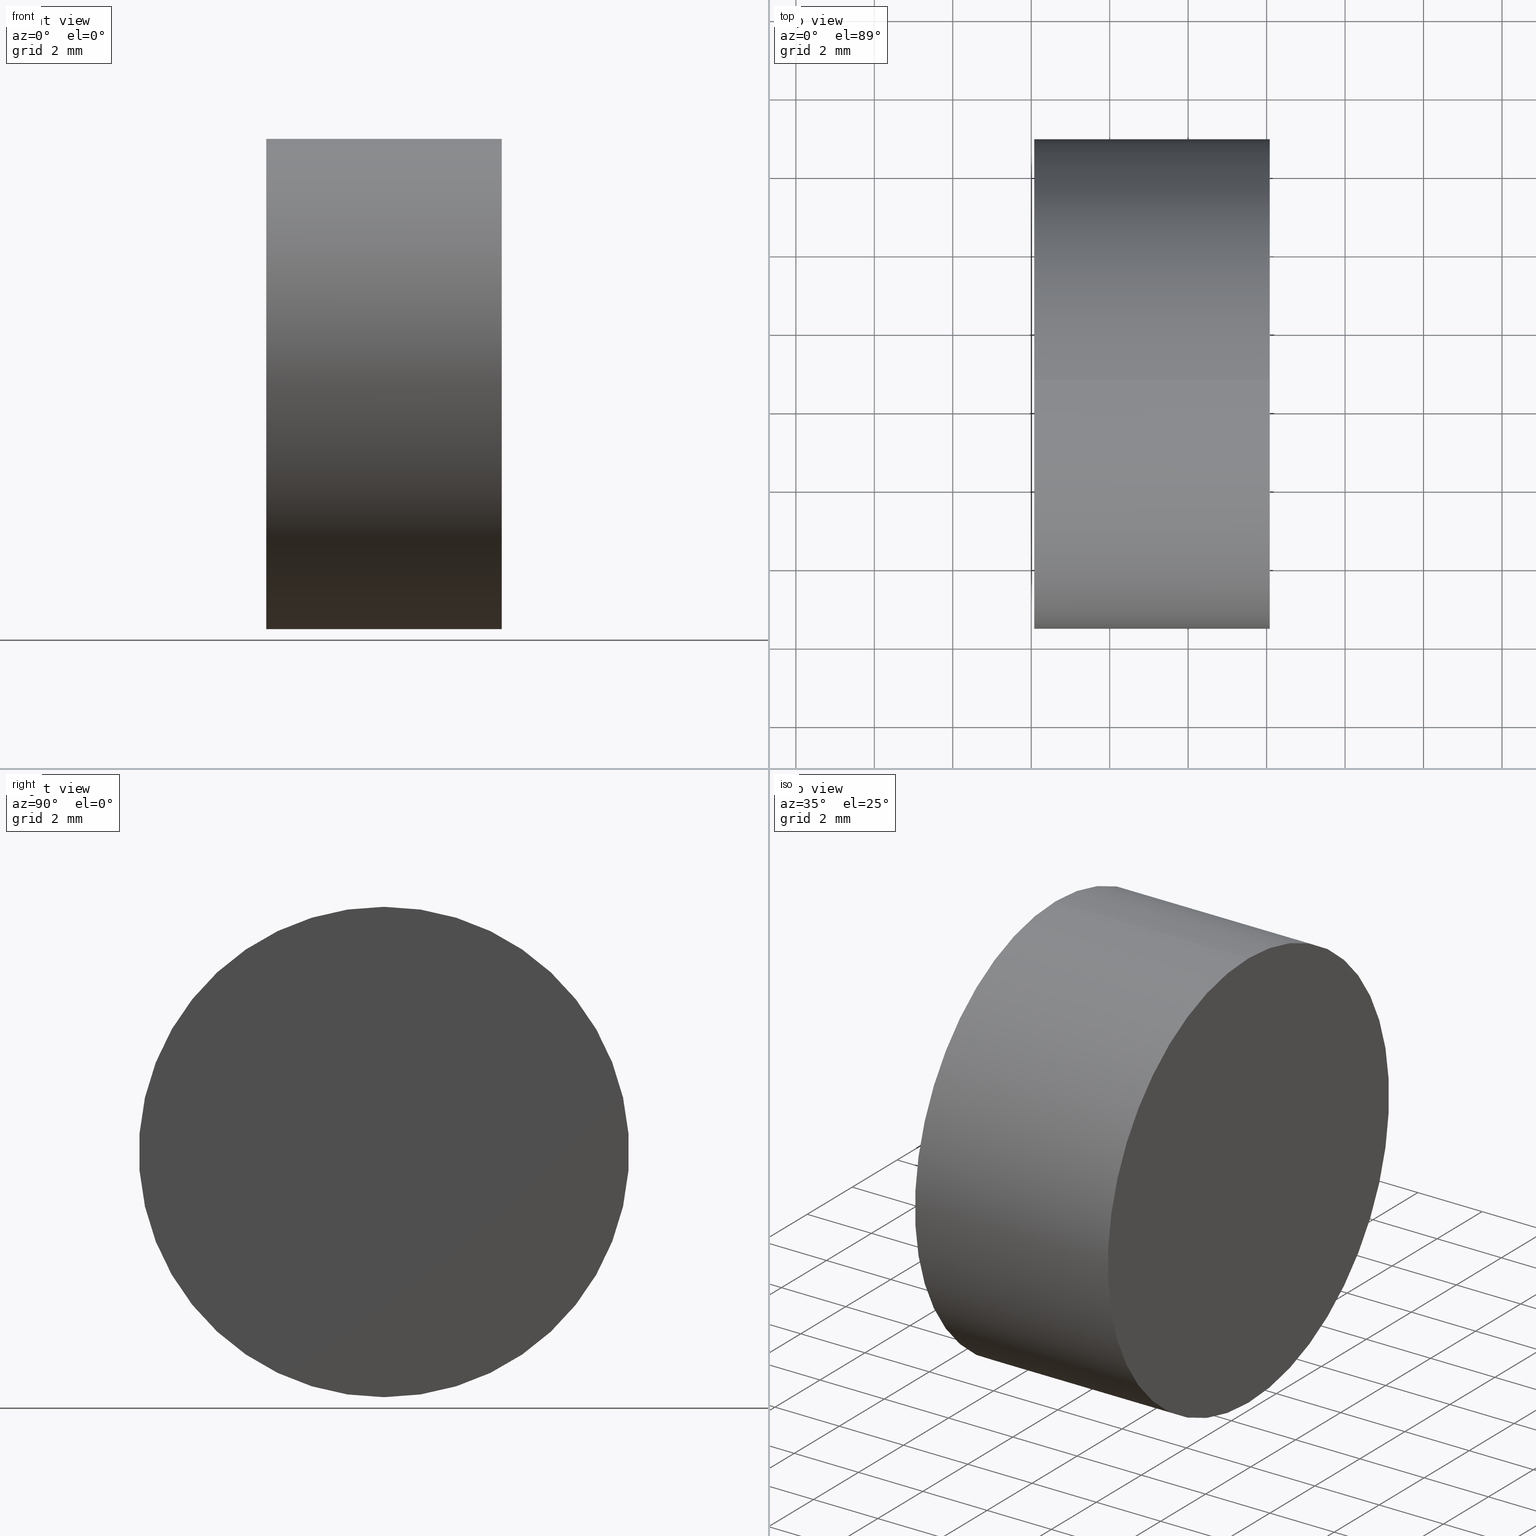
[diagram: canonical four-view strip — front | top / right | iso, engineering-drawing reading convention]
A machine part, canonical four-view strip (front | top / right | iso — engineering-drawing reading convention). The complete STEP part file that produces these views, byte-faithful:
ISO-10303-21;
HEADER;
FILE_DESCRIPTION (( 'STEP AP214' ),
    '1' );
FILE_NAME ('430000.STEP',
    '2019-08-22T02:10:31',
    ( '' ),
    ( '' ),
    'SwSTEP 2.0',
    'SolidWorks 2016',
    '' );
FILE_SCHEMA (( 'AUTOMOTIVE_DESIGN' ));
ENDSEC;

DATA;
#1 = ORIENTED_EDGE ( 'NONE', *, *, #33, .T. ) ;
#2 = ADVANCED_FACE ( 'NONE', ( #108 ), #126, .F. ) ;
#3 = ORIENTED_EDGE ( 'NONE', *, *, #11, .F. ) ;
#4 = CARTESIAN_POINT ( 'NONE',  ( 127.0004009963080200, 38.64658967450770900, -6.249999999999992000 ) ) ;
#5 = DIRECTION ( 'NONE',  ( -1.000000000000000000, 0.0000000000000000000, -0.0000000000000000000 ) ) ;
#6 = AXIS2_PLACEMENT_3D ( 'NONE', #125, #117, #66 ) ;
#7 = FILL_AREA_STYLE ('',( #67 ) ) ;
#8 = EDGE_LOOP ( 'NONE', ( #81, #43, #1, #60 ) ) ;
#9 = FILL_AREA_STYLE_COLOUR ( '', #105 ) ;
#10 = CARTESIAN_POINT ( 'NONE',  ( 130.0785702462804900, 38.64658967450770900, 0.0000000000000000000 ) ) ;
#11 = EDGE_CURVE ( 'NONE', #58, #94, #19, .T. ) ;
#12 =( NAMED_UNIT ( * ) SI_UNIT ( $, .STERADIAN. ) SOLID_ANGLE_UNIT ( ) );
#13 = CIRCLE ( 'NONE', #70, 6.249999999999992000 ) ;
#14 = PRESENTATION_LAYER_ASSIGNMENT (  '', '', ( #114 ) ) ;
#15 = UNCERTAINTY_MEASURE_WITH_UNIT (LENGTH_MEASURE( 1.000000000000000100E-005 ), #23, 'distance_accuracy_value', 'NONE');
#16 = EDGE_CURVE ( 'NONE', #131, #63, #113, .T. ) ;
#17 =( NAMED_UNIT ( * ) PLANE_ANGLE_UNIT ( ) SI_UNIT ( $, .RADIAN. ) );
#18 = CARTESIAN_POINT ( 'NONE',  ( 136.0785702462804900, 38.64658967450770900, -6.249999999999992000 ) ) ;
#19 = CIRCLE ( 'NONE', #6, 6.249999999999992000 ) ;
#20 = DIRECTION ( 'NONE',  ( -1.000000000000000000, -0.0000000000000000000, -0.0000000000000000000 ) ) ;
#21 = STYLED_ITEM ( 'NONE', ( #30 ), #47 ) ;
#22 = DIRECTION ( 'NONE',  ( 0.0000000000000000000, 0.0000000000000000000, 1.000000000000000000 ) ) ;
#23 =( LENGTH_UNIT ( ) NAMED_UNIT ( * ) SI_UNIT ( .MILLI., .METRE. ) );
#24 = DIRECTION ( 'NONE',  ( 0.0000000000000000000, 0.0000000000000000000, 1.000000000000000000 ) ) ;
#25 = APPLICATION_PROTOCOL_DEFINITION ( 'draft international standard', 'automotive_design', 1998, #112 ) ;
#26 = FACE_OUTER_BOUND ( 'NONE', #27, .T. ) ;
#27 = EDGE_LOOP ( 'NONE', ( #116, #132 ) ) ;
#28 = AXIS2_PLACEMENT_3D ( 'NONE', #97, #45, #34 ) ;
#29 = CLOSED_SHELL ( 'NONE', ( #41, #2, #115, #39 ) ) ;
#30 = PRESENTATION_STYLE_ASSIGNMENT (( #59 ) ) ;
#31 = DIRECTION ( 'NONE',  ( 0.0000000000000000000, 0.0000000000000000000, 1.000000000000000000 ) ) ;
#32 = CARTESIAN_POINT ( 'NONE',  ( 136.0785702462804900, 38.64658967450770900, 6.249999999999992000 ) ) ;
#33 = EDGE_CURVE ( 'NONE', #58, #131, #96, .T. ) ;
#34 = DIRECTION ( 'NONE',  ( 0.0000000000000000000, 0.0000000000000000000, -1.000000000000000000 ) ) ;
#35 = ORIENTED_EDGE ( 'NONE', *, *, #57, .T. ) ;
#36 = PRODUCT_CONTEXT ( 'NONE', #112, 'mechanical' ) ;
#37 = AXIS2_PLACEMENT_3D ( 'NONE', #119, #138, #103 ) ;
#38 = AXIS2_PLACEMENT_3D ( 'NONE', #87, #20, #61 ) ;
#39 = ADVANCED_FACE ( 'NONE', ( #26 ), #98, .F. ) ;
#40 = ORIENTED_EDGE ( 'NONE', *, *, #137, .F. ) ;
#41 = ADVANCED_FACE ( 'NONE', ( #82 ), #65, .T. ) ;
#42 = MECHANICAL_DESIGN_GEOMETRIC_PRESENTATION_REPRESENTATION (  '', ( #114 ), #51 ) ;
#43 = ORIENTED_EDGE ( 'NONE', *, *, #137, .T. ) ;
#44 = AXIS2_PLACEMENT_3D ( 'NONE', #10, #89, #24 ) ;
#45 = DIRECTION ( 'NONE',  ( 1.000000000000000000, 0.0000000000000000000, 0.0000000000000000000 ) ) ;
#46 =( NAMED_UNIT ( * ) SI_UNIT ( $, .STERADIAN. ) SOLID_ANGLE_UNIT ( ) );
#47 = MANIFOLD_SOLID_BREP ( '��ת1', #29 ) ;
#48 = SURFACE_STYLE_FILL_AREA ( #7 ) ;
#49 = SURFACE_SIDE_STYLE ('',( #53 ) ) ;
#50 = DIRECTION ( 'NONE',  ( -1.000000000000000000, -0.0000000000000000000, -0.0000000000000000000 ) ) ;
#51 =( GEOMETRIC_REPRESENTATION_CONTEXT ( 3 ) GLOBAL_UNCERTAINTY_ASSIGNED_CONTEXT ( ( #56 ) ) GLOBAL_UNIT_ASSIGNED_CONTEXT ( ( #69, #102, #12 ) ) REPRESENTATION_CONTEXT ( 'NONE', 'WORKASPACE' ) );
#52 = SURFACE_STYLE_USAGE ( .BOTH. , #93 ) ;
#53 = SURFACE_STYLE_FILL_AREA ( #110 ) ;
#54 = FACE_OUTER_BOUND ( 'NONE', #8, .T. ) ;
#55 = AXIS2_PLACEMENT_3D ( 'NONE', #135, #109, #31 ) ;
#56 = UNCERTAINTY_MEASURE_WITH_UNIT (LENGTH_MEASURE( 1.000000000000000100E-005 ), #69, 'distance_accuracy_value', 'NONE');
#57 = EDGE_CURVE ( 'NONE', #94, #63, #127, .T. ) ;
#58 = VERTEX_POINT ( 'NONE', #32 ) ;
#59 = SURFACE_STYLE_USAGE ( .BOTH. , #49 ) ;
#60 = ORIENTED_EDGE ( 'NONE', *, *, #95, .F. ) ;
#61 = DIRECTION ( 'NONE',  ( 0.0000000000000000000, 0.0000000000000000000, 1.000000000000000000 ) ) ;
#62 = MECHANICAL_DESIGN_GEOMETRIC_PRESENTATION_REPRESENTATION (  '', ( #21 ), #78 ) ;
#63 = VERTEX_POINT ( 'NONE', #133 ) ;
#64 =( NAMED_UNIT ( * ) PLANE_ANGLE_UNIT ( ) SI_UNIT ( $, .RADIAN. ) );
#65 = CYLINDRICAL_SURFACE ( 'NONE', #55, 6.249999999999992000 ) ;
#66 = DIRECTION ( 'NONE',  ( 0.0000000000000000000, 0.0000000000000000000, 1.000000000000000000 ) ) ;
#67 = FILL_AREA_STYLE_COLOUR ( '', #100 ) ;
#68 = PRODUCT_DEFINITION_SHAPE ( 'NONE', 'NONE',  #71 ) ;
#69 =( LENGTH_UNIT ( ) NAMED_UNIT ( * ) SI_UNIT ( .MILLI., .METRE. ) );
#70 = AXIS2_PLACEMENT_3D ( 'NONE', #90, #91, #22 ) ;
#71 = PRODUCT_DEFINITION ( 'δ֪', '', #130, #124 ) ;
#72 = SHAPE_DEFINITION_REPRESENTATION ( #68, #74 ) ;
#73 = CIRCLE ( 'NONE', #44, 6.249999999999992000 ) ;
#74 = ADVANCED_BREP_SHAPE_REPRESENTATION ( '430000', ( #47, #37 ), #83 ) ;
#75 =( LENGTH_UNIT ( ) NAMED_UNIT ( * ) SI_UNIT ( .MILLI., .METRE. ) );
#76 = DIRECTION ( 'NONE',  ( -1.000000000000000000, -0.0000000000000000000, -0.0000000000000000000 ) ) ;
#77 = APPLICATION_PROTOCOL_DEFINITION ( 'draft international standard', 'automotive_design', 1998, #120 ) ;
#78 =( GEOMETRIC_REPRESENTATION_CONTEXT ( 3 ) GLOBAL_UNCERTAINTY_ASSIGNED_CONTEXT ( ( #128 ) ) GLOBAL_UNIT_ASSIGNED_CONTEXT ( ( #75, #17, #46 ) ) REPRESENTATION_CONTEXT ( 'NONE', 'WORKASPACE' ) );
#79 =( NAMED_UNIT ( * ) SI_UNIT ( $, .STERADIAN. ) SOLID_ANGLE_UNIT ( ) );
#80 = PRODUCT ( '430000', '430000', '', ( #36 ) ) ;
#81 = ORIENTED_EDGE ( 'NONE', *, *, #57, .F. ) ;
#82 = FACE_OUTER_BOUND ( 'NONE', #129, .T. ) ;
#83 =( GEOMETRIC_REPRESENTATION_CONTEXT ( 3 ) GLOBAL_UNCERTAINTY_ASSIGNED_CONTEXT ( ( #15 ) ) GLOBAL_UNIT_ASSIGNED_CONTEXT ( ( #23, #64, #79 ) ) REPRESENTATION_CONTEXT ( 'NONE', 'WORKASPACE' ) );
#84 = DIRECTION ( 'NONE',  ( -1.000000000000000000, -0.0000000000000000000, -0.0000000000000000000 ) ) ;
#85 = AXIS2_PLACEMENT_3D ( 'NONE', #101, #50, #92 ) ;
#86 = ORIENTED_EDGE ( 'NONE', *, *, #11, .T. ) ;
#87 = CARTESIAN_POINT ( 'NONE',  ( 130.0785702462804900, 38.64658967450770900, 0.0000000000000000000 ) ) ;
#88 = CARTESIAN_POINT ( 'NONE',  ( 127.0004009963080200, 38.64658967450770900, 6.249999999999992000 ) ) ;
#89 = DIRECTION ( 'NONE',  ( -1.000000000000000000, -0.0000000000000000000, -0.0000000000000000000 ) ) ;
#90 = CARTESIAN_POINT ( 'NONE',  ( 136.0785702462804900, 38.64658967450770900, 0.0000000000000000000 ) ) ;
#91 = DIRECTION ( 'NONE',  ( -1.000000000000000000, -0.0000000000000000000, -0.0000000000000000000 ) ) ;
#92 = DIRECTION ( 'NONE',  ( 0.0000000000000000000, 0.0000000000000000000, 1.000000000000000000 ) ) ;
#93 = SURFACE_SIDE_STYLE ('',( #48 ) ) ;
#94 = VERTEX_POINT ( 'NONE', #18 ) ;
#95 = EDGE_CURVE ( 'NONE', #63, #131, #73, .T. ) ;
#96 = LINE ( 'NONE', #88, #107 ) ;
#97 = CARTESIAN_POINT ( 'NONE',  ( 130.0785702462804900, 38.64658967450770200, 0.0000000000000000000 ) ) ;
#98 = PLANE ( 'NONE',  #28 ) ;
#99 = PRESENTATION_LAYER_ASSIGNMENT (  '', '', ( #21 ) ) ;
#100 = COLOUR_RGB ( '',1.000000000000000000, 1.000000000000000000, 1.000000000000000000 ) ;
#101 = CARTESIAN_POINT ( 'NONE',  ( 127.0004009963080200, 38.64658967450770900, 0.0000000000000000000 ) ) ;
#102 =( NAMED_UNIT ( * ) PLANE_ANGLE_UNIT ( ) SI_UNIT ( $, .RADIAN. ) );
#103 = DIRECTION ( 'NONE',  ( 1.000000000000000000, 0.0000000000000000000, 0.0000000000000000000 ) ) ;
#104 = CYLINDRICAL_SURFACE ( 'NONE', #85, 6.249999999999992000 ) ;
#105 = COLOUR_RGB ( '',1.000000000000000000, 1.000000000000000000, 1.000000000000000000 ) ;
#106 = DIRECTION ( 'NONE',  ( -0.0000000000000000000, 0.0000000000000000000, 1.000000000000000000 ) ) ;
#107 = VECTOR ( 'NONE', #84, 1000.000000000000000 ) ;
#108 = FACE_OUTER_BOUND ( 'NONE', #134, .T. ) ;
#109 = DIRECTION ( 'NONE',  ( -1.000000000000000000, -0.0000000000000000000, -0.0000000000000000000 ) ) ;
#110 = FILL_AREA_STYLE ('',( #9 ) ) ;
#111 = CARTESIAN_POINT ( 'NONE',  ( 130.0785702462804900, 38.64658967450770900, 6.249999999999992000 ) ) ;
#112 = APPLICATION_CONTEXT ( 'automotive_design' ) ;
#113 = CIRCLE ( 'NONE', #38, 6.249999999999992000 ) ;
#114 = STYLED_ITEM ( 'NONE', ( #122 ), #74 ) ;
#115 = ADVANCED_FACE ( 'NONE', ( #54 ), #104, .T. ) ;
#116 = ORIENTED_EDGE ( 'NONE', *, *, #16, .T. ) ;
#117 = DIRECTION ( 'NONE',  ( -1.000000000000000000, -0.0000000000000000000, -0.0000000000000000000 ) ) ;
#118 = CARTESIAN_POINT ( 'NONE',  ( 136.0785702462804900, 38.64658967450770200, 0.0000000000000000000 ) ) ;
#119 = CARTESIAN_POINT ( 'NONE',  ( 0.0000000000000000000, 0.0000000000000000000, 0.0000000000000000000 ) ) ;
#120 = APPLICATION_CONTEXT ( 'automotive_design' ) ;
#121 = ORIENTED_EDGE ( 'NONE', *, *, #16, .F. ) ;
#122 = PRESENTATION_STYLE_ASSIGNMENT (( #52 ) ) ;
#123 = AXIS2_PLACEMENT_3D ( 'NONE', #118, #5, #106 ) ;
#124 = PRODUCT_DEFINITION_CONTEXT ( 'detailed design', #120, 'design' ) ;
#125 = CARTESIAN_POINT ( 'NONE',  ( 136.0785702462804900, 38.64658967450770900, 0.0000000000000000000 ) ) ;
#126 = PLANE ( 'NONE',  #123 ) ;
#127 = LINE ( 'NONE', #4, #139 ) ;
#128 = UNCERTAINTY_MEASURE_WITH_UNIT (LENGTH_MEASURE( 1.000000000000000100E-005 ), #75, 'distance_accuracy_value', 'NONE');
#129 = EDGE_LOOP ( 'NONE', ( #86, #35, #121, #136 ) ) ;
#130 = PRODUCT_DEFINITION_FORMATION_WITH_SPECIFIED_SOURCE ( '�κ�', '', #80, .NOT_KNOWN. ) ;
#131 = VERTEX_POINT ( 'NONE', #111 ) ;
#132 = ORIENTED_EDGE ( 'NONE', *, *, #95, .T. ) ;
#133 = CARTESIAN_POINT ( 'NONE',  ( 130.0785702462804900, 38.64658967450770900, -6.249999999999992000 ) ) ;
#134 = EDGE_LOOP ( 'NONE', ( #3, #40 ) ) ;
#135 = CARTESIAN_POINT ( 'NONE',  ( 127.0004009963080200, 38.64658967450770900, 0.0000000000000000000 ) ) ;
#136 = ORIENTED_EDGE ( 'NONE', *, *, #33, .F. ) ;
#137 = EDGE_CURVE ( 'NONE', #94, #58, #13, .T. ) ;
#138 = DIRECTION ( 'NONE',  ( 0.0000000000000000000, 0.0000000000000000000, 1.000000000000000000 ) ) ;
#139 = VECTOR ( 'NONE', #76, 1000.000000000000000 ) ;
#140 = PRODUCT_RELATED_PRODUCT_CATEGORY ( 'part', '', ( #80 ) ) ;
ENDSEC;
END-ISO-10303-21;
